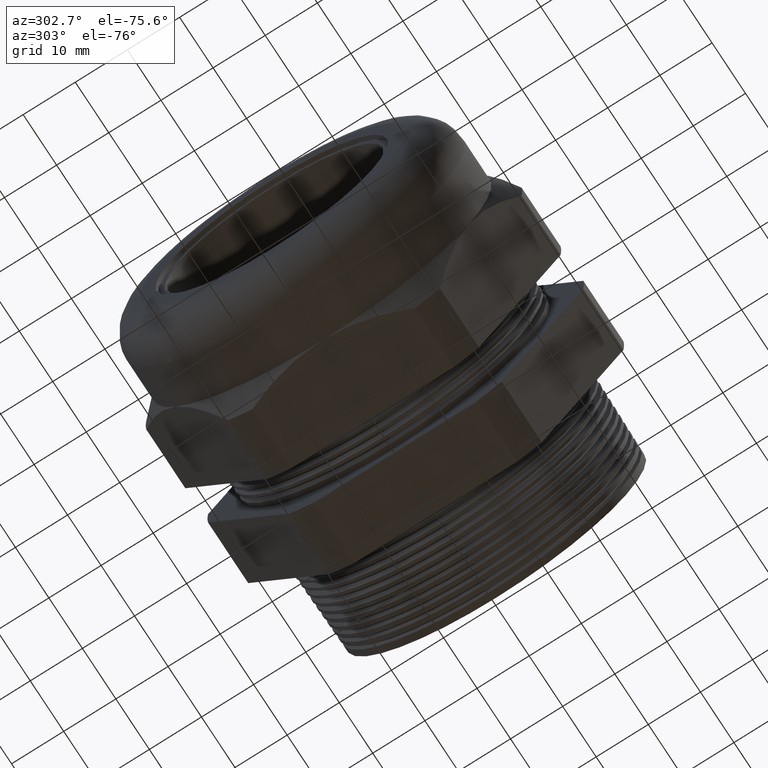
[diagram: clean part render]
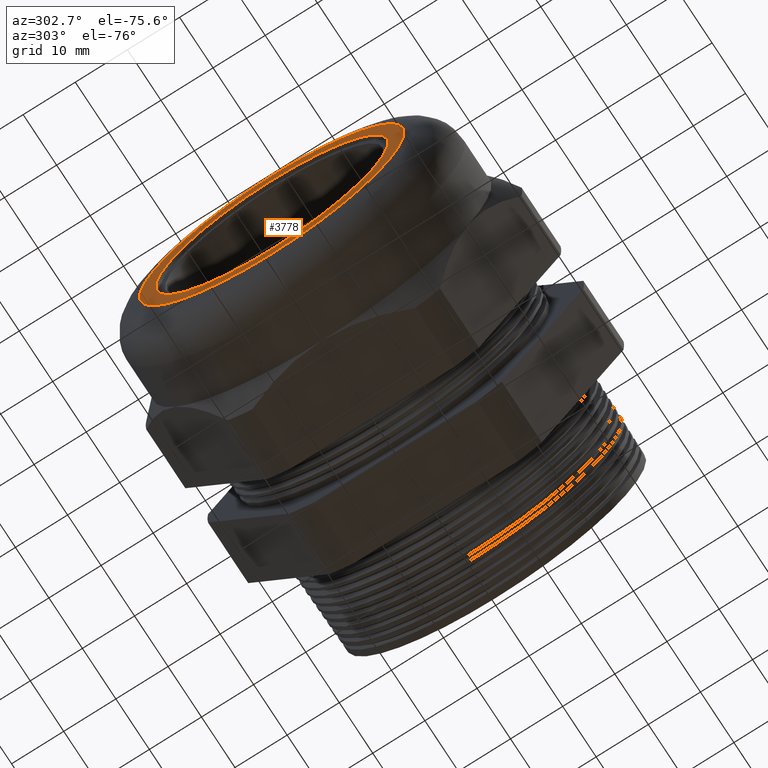
[diagram: same view with one face highlighted and labeled with its STEP entity id]
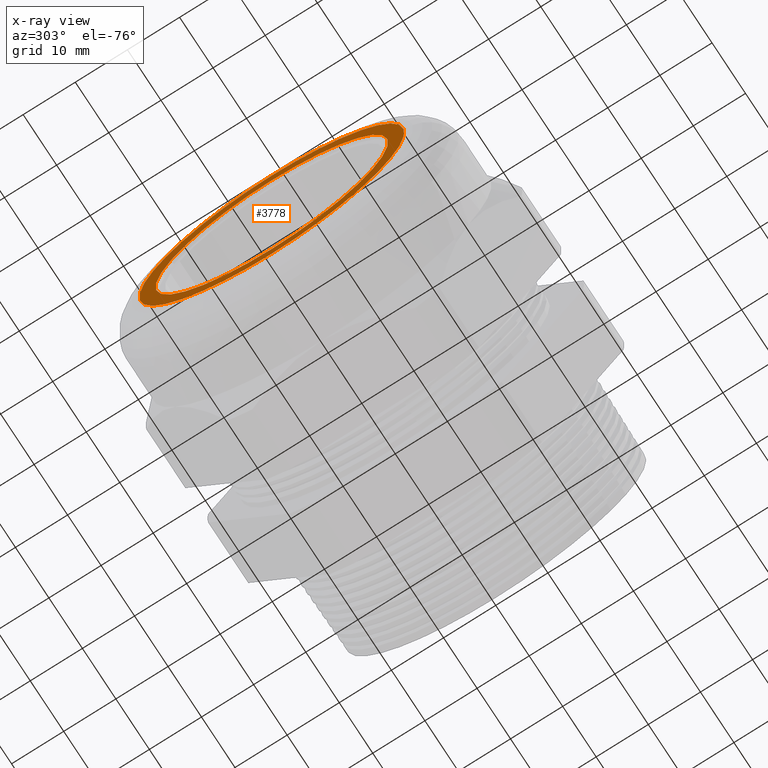
[diagram: x-ray of the same camera — body ghosted, the highlighted face saturated]
A machine part, auxiliary view. The second image highlights one B-rep face of the part: STEP entity #3778.
The next image is the same camera in x-ray: the body ghosted, the highlighted face saturated — about 0% of this face is hidden behind the body in this view.
In plain terms, the highlighted planar face has unit normal (-1, 0, 0).
Its self-contained STEP definition (entity closure, byte-faithful):
#490 = DIRECTION ( 'NONE',  ( -1.000000000000000000, 0.0000000000000000000, 0.0000000000000000000 ) ) ;
#491 = AXIS2_PLACEMENT_3D ( 'NONE', #499, #490, #557 ) ;
#492 = CIRCLE ( 'NONE', #491, 1.000000000000000000 ) ;
#499 = CARTESIAN_POINT ( 'NONE',  ( -2.239999999999999800, 0.0000000000000000000, 0.0000000000000000000 ) ) ;
#556 = CARTESIAN_POINT ( 'NONE',  ( -2.239999999999999800, 0.0000000000000000000, 1.000000000000000000 ) ) ;
#557 = DIRECTION ( 'NONE',  ( 0.0000000000000000000, 0.0000000000000000000, 1.000000000000000000 ) ) ;
#622 = CARTESIAN_POINT ( 'NONE',  ( -2.239999999999999800, 1.396097351027982800E-016, -1.000000000000000000 ) ) ;
#1203 = CARTESIAN_POINT ( 'NONE',  ( -2.239999999999999800, 0.0000000000000000000, -0.8774999999999999500 ) ) ;
#1204 = CARTESIAN_POINT ( 'NONE',  ( -2.239999999999999800, 1.074627566251802300E-016, 0.8774999999999999500 ) ) ;
#1205 = DIRECTION ( 'NONE',  ( 0.0000000000000000000, 0.0000000000000000000, -1.000000000000000000 ) ) ;
#1206 = DIRECTION ( 'NONE',  ( 1.000000000000000000, 0.0000000000000000000, 0.0000000000000000000 ) ) ;
#1207 = AXIS2_PLACEMENT_3D ( 'NONE', #1214, #1206, #1205 ) ;
#1208 = CIRCLE ( 'NONE', #1207, 0.8774999999999999500 ) ;
#1214 = CARTESIAN_POINT ( 'NONE',  ( -2.239999999999999800, 0.0000000000000000000, 0.0000000000000000000 ) ) ;
#1960 = CARTESIAN_POINT ( 'NONE',  ( -2.239999999999999800, 0.0000000000000000000, 0.0000000000000000000 ) ) ;
#2021 = DIRECTION ( 'NONE',  ( 0.0000000000000000000, 0.0000000000000000000, -1.000000000000000000 ) ) ;
#2022 = DIRECTION ( 'NONE',  ( 1.000000000000000000, 0.0000000000000000000, 0.0000000000000000000 ) ) ;
#2023 = AXIS2_PLACEMENT_3D ( 'NONE', #1960, #2022, #2021 ) ;
#2025 = CIRCLE ( 'NONE', #2023, 0.8774999999999999500 ) ;
#2063 = DIRECTION ( 'NONE',  ( 0.0000000000000000000, 0.0000000000000000000, 1.000000000000000000 ) ) ;
#2064 = DIRECTION ( 'NONE',  ( -1.000000000000000000, 0.0000000000000000000, 0.0000000000000000000 ) ) ;
#2065 = CARTESIAN_POINT ( 'NONE',  ( -2.239999999999999800, 0.0000000000000000000, 0.0000000000000000000 ) ) ;
#2066 = AXIS2_PLACEMENT_3D ( 'NONE', #2065, #2064, #2063 ) ;
#2067 = CIRCLE ( 'NONE', #2066, 1.000000000000000000 ) ;
#2068 = DIRECTION ( 'NONE',  ( 0.0000000000000000000, 0.0000000000000000000, 1.000000000000000000 ) ) ;
#2069 = DIRECTION ( 'NONE',  ( -1.000000000000000000, 0.0000000000000000000, 0.0000000000000000000 ) ) ;
#2070 = CARTESIAN_POINT ( 'NONE',  ( -2.239999999999999800, 1.280000000000000000, 0.0000000000000000000 ) ) ;
#2071 = AXIS2_PLACEMENT_3D ( 'NONE', #2070, #2069, #2068 ) ;
#2072 = PLANE ( 'NONE',  #2071 ) ;
#2073 = FACE_BOUND ( 'NONE', #3707, .T. ) ;
#2074 = FACE_OUTER_BOUND ( 'NONE', #3779, .T. ) ;
#2778 = EDGE_CURVE ( 'NONE', #2779, #2817, #492, .T. ) ;
#2779 = VERTEX_POINT ( 'NONE', #556 ) ;
#2817 = VERTEX_POINT ( 'NONE', #622 ) ;
#3105 = EDGE_CURVE ( 'NONE', #3106, #3107, #1208, .T. ) ;
#3106 = VERTEX_POINT ( 'NONE', #1204 ) ;
#3107 = VERTEX_POINT ( 'NONE', #1203 ) ;
#3707 = EDGE_LOOP ( 'NONE', ( #3739, #3740 ) ) ;
#3728 = EDGE_CURVE ( 'NONE', #3107, #3106, #2025, .T. ) ;
#3739 = ORIENTED_EDGE ( 'NONE', *, *, #3728, .T. ) ;
#3740 = ORIENTED_EDGE ( 'NONE', *, *, #3105, .T. ) ;
#3778 = ADVANCED_FACE ( 'NONE', ( #2074, #2073 ), #2072, .T. ) ;
#3779 = EDGE_LOOP ( 'NONE', ( #3780, #3781 ) ) ;
#3780 = ORIENTED_EDGE ( 'NONE', *, *, #2778, .T. ) ;
#3781 = ORIENTED_EDGE ( 'NONE', *, *, #3782, .T. ) ;
#3782 = EDGE_CURVE ( 'NONE', #2817, #2779, #2067, .T. ) ;